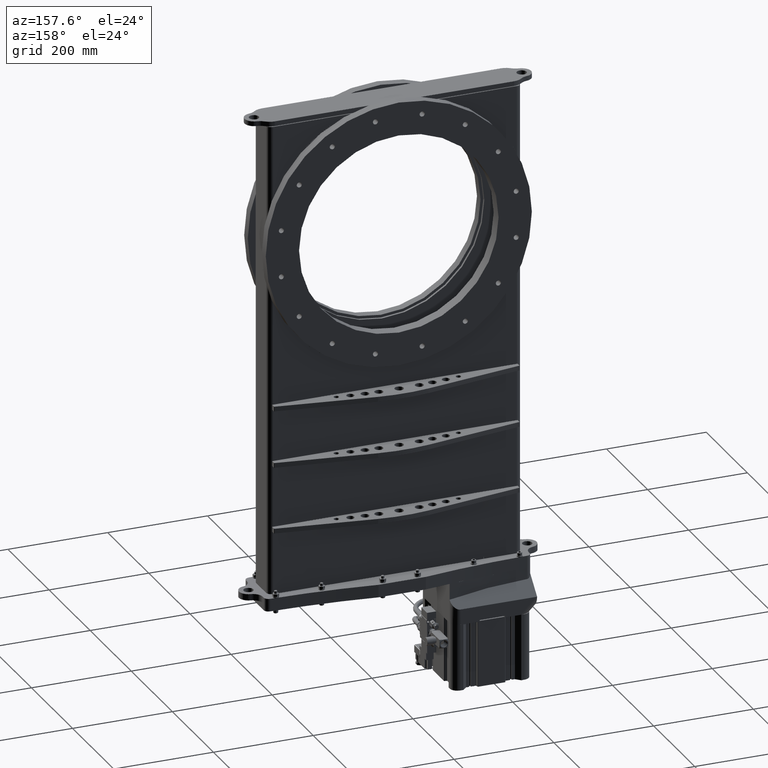
[diagram: clean part render]
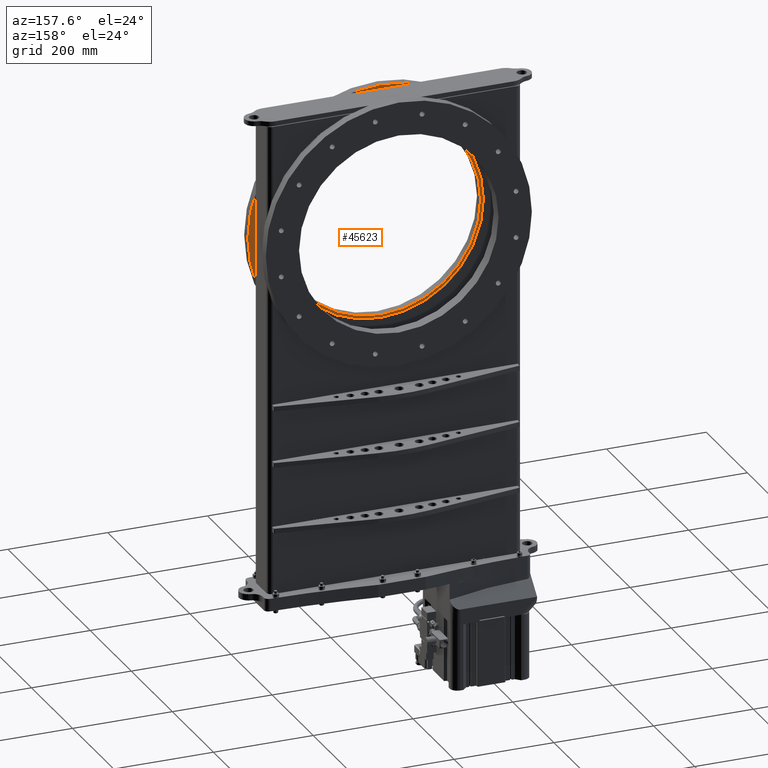
[diagram: same view with one face highlighted and labeled with its STEP entity id]
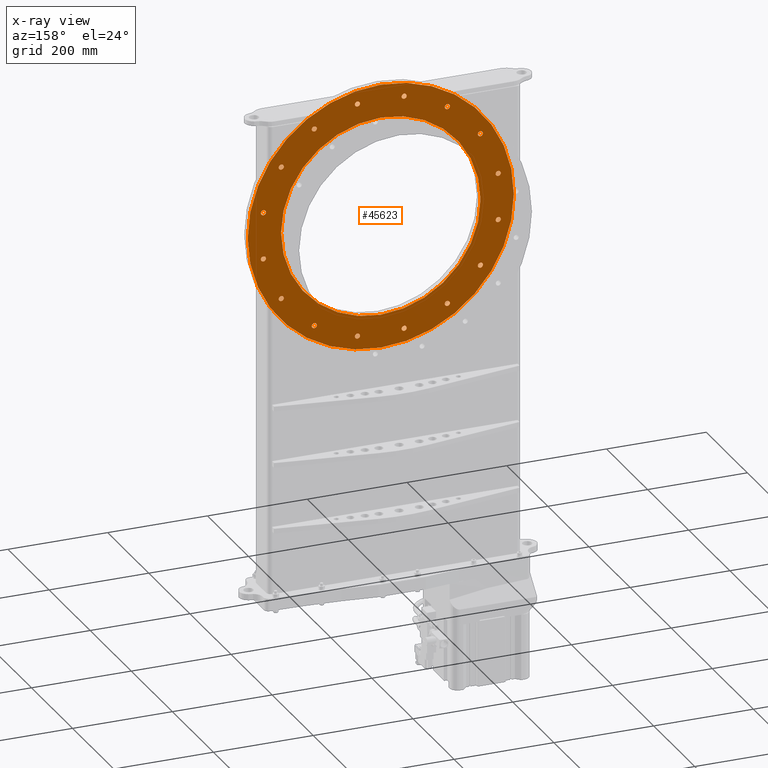
[diagram: x-ray of the same camera — body ghosted, the highlighted face saturated]
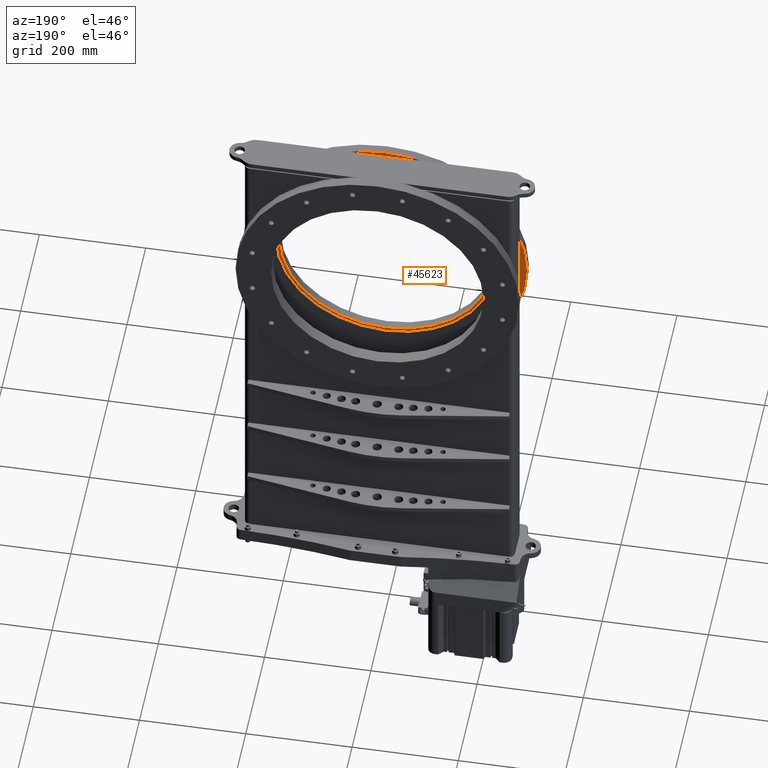
[diagram: same view with one face highlighted and labeled with its STEP entity id]
A machine part, auxiliary view. The second image highlights one B-rep face of the part: STEP entity #45623.
The next image is the same camera in x-ray: the body ghosted, the highlighted face saturated — about 0% of this face is hidden behind the body in this view.
A second angle (auxiliary view) of the same face is appended — the face is thin or edge-on in the first view.
In plain terms, the highlighted planar face has unit normal (-0, 1, -0).
Its self-contained STEP definition (entity closure, byte-faithful):
#70 = VERTEX_POINT ( 'NONE', #17913 ) ;
#537 = CIRCLE ( 'NONE', #41594, 0.2007874015748029000 ) ;
#557 = DIRECTION ( 'NONE',  ( 0.0000000000000000000, 0.0000000000000000000, 1.000000000000000000 ) ) ;
#1061 = DIRECTION ( 'NONE',  ( 0.0000000000000000000, 0.0000000000000000000, 1.000000000000000000 ) ) ;
#1140 = AXIS2_PLACEMENT_3D ( 'NONE', #14977, #34282, #24769 ) ;
#1148 = FACE_BOUND ( 'NONE', #57524, .T. ) ;
#1870 = EDGE_CURVE ( 'NONE', #40888, #9859, #43566, .T. ) ;
#2165 = CARTESIAN_POINT ( 'NONE',  ( -7.856556366646782600, -77.03351309069576300, 27.35303221751707900 ) ) ;
#2593 = DIRECTION ( 'NONE',  ( 0.0000000000000000000, 0.0000000000000000000, 1.000000000000000000 ) ) ;
#2667 = CARTESIAN_POINT ( 'NONE',  ( -1.843408452730433300, -77.03351309069576300, 23.13438783321433300 ) ) ;
#2855 = EDGE_CURVE ( 'NONE', #12843, #39254, #63098, .T. ) ;
#3041 = EDGE_LOOP ( 'NONE', ( #40603, #62311 ) ) ;
#3288 = CARTESIAN_POINT ( 'NONE',  ( -5.249583131802261000, -77.03351309069576300, 24.54527158109773000 ) ) ;
#3379 = FACE_BOUND ( 'NONE', #30081, .T. ) ;
#3588 = CARTESIAN_POINT ( 'NONE',  ( -5.249583131802148200, -77.03351309069576300, 40.25838431439126500 ) ) ;
#3624 = EDGE_CURVE ( 'NONE', #51291, #14193, #5934, .T. ) ;
#3632 = AXIS2_PLACEMENT_3D ( 'NONE', #26964, #16965, #26753 ) ;
#3932 = ORIENTED_EDGE ( 'NONE', *, *, #14844, .F. ) ;
#3942 = EDGE_LOOP ( 'NONE', ( #24578, #9798 ) ) ;
#4188 = AXIS2_PLACEMENT_3D ( 'NONE', #28173, #62202, #18812 ) ;
#4275 = EDGE_CURVE ( 'NONE', #14649, #52074, #45357, .T. ) ;
#4478 = VERTEX_POINT ( 'NONE', #42312 ) ;
#4538 = ORIENTED_EDGE ( 'NONE', *, *, #4275, .F. ) ;
#4639 = CIRCLE ( 'NONE', #10075, 0.2007874015748029000 ) ;
#4733 = AXIS2_PLACEMENT_3D ( 'NONE', #57637, #42746, #32503 ) ;
#5210 = CIRCLE ( 'NONE', #21980, 0.2007874015748072600 ) ;
#5239 = DIRECTION ( 'NONE',  ( -2.350988701644575000E-038, 1.000000000000000000, 4.114230227878006300E-038 ) ) ;
#5262 = VERTEX_POINT ( 'NONE', #13774 ) ;
#5404 = CIRCLE ( 'NONE', #56029, 0.2007874015748029000 ) ;
#5478 = CARTESIAN_POINT ( 'NONE',  ( -1.843408452730303600, -77.03351309069576300, 41.66926806227459700 ) ) ;
#5483 = ORIENTED_EDGE ( 'NONE', *, *, #17079, .F. ) ;
#5934 = CIRCLE ( 'NONE', #19645, 0.2007874015748029000 ) ;
#6154 = EDGE_CURVE ( 'NONE', #33998, #40052, #35689, .T. ) ;
#6398 = FACE_BOUND ( 'NONE', #34943, .T. ) ;
#6467 = CARTESIAN_POINT ( 'NONE',  ( -9.267440114530112200, -77.03351309069576300, 34.04444899890012300 ) ) ;
#6722 = CIRCLE ( 'NONE', #42909, 0.2007874015748029000 ) ;
#6799 = DIRECTION ( 'NONE',  ( -2.350988701644575000E-038, 1.000000000000000000, 4.114230227878006300E-038 ) ) ;
#6953 = CARTESIAN_POINT ( 'NONE',  ( 5.249583131802317800, -77.03351309069576300, 40.25838431439114400 ) ) ;
#7053 = DIRECTION ( 'NONE',  ( -2.350988701644575500E-038, 1.000000000000000000, -5.289724578700292700E-038 ) ) ;
#7100 = DIRECTION ( 'NONE',  ( 0.0000000000000000000, 0.0000000000000000000, 1.000000000000000000 ) ) ;
#7187 = CARTESIAN_POINT ( 'NONE',  ( -7.856556366646708900, -77.03351309069576300, 37.65141107954674700 ) ) ;
#7276 = PLANE ( 'NONE',  #11160 ) ;
#7362 = EDGE_CURVE ( 'NONE', #36567, #50354, #46887, .T. ) ;
#7757 = CARTESIAN_POINT ( 'NONE',  ( 7.856556366646744400, -77.03351309069576300, 27.15224481594222200 ) ) ;
#7996 = CIRCLE ( 'NONE', #62005, 10.50000000000000700 ) ;
#8046 = CARTESIAN_POINT ( 'NONE',  ( 9.267440114530128200, -77.03351309069576300, 30.55841949501405000 ) ) ;
#8557 = AXIS2_PLACEMENT_3D ( 'NONE', #5478, #57741, #59128 ) ;
#8683 = FACE_OUTER_BOUND ( 'NONE', #12838, .T. ) ;
#8691 = DIRECTION ( 'NONE',  ( 5.551115123125779600E-017, 0.0000000000000000000, 1.000000000000000000 ) ) ;
#8825 = ORIENTED_EDGE ( 'NONE', *, *, #18785, .F. ) ;
#9111 = DIRECTION ( 'NONE',  ( -2.350988701644575000E-038, 1.000000000000000000, 4.114230227878006300E-038 ) ) ;
#9305 = EDGE_CURVE ( 'NONE', #52074, #14649, #59551, .T. ) ;
#9343 = CARTESIAN_POINT ( 'NONE',  ( 9.267440114530126400, -77.03351309069576300, 34.24523640047485200 ) ) ;
#9518 = DIRECTION ( 'NONE',  ( -2.350988701644575000E-038, 1.000000000000000000, 4.114230227878006300E-038 ) ) ;
#9598 = DIRECTION ( 'NONE',  ( 0.0000000000000000000, 0.0000000000000000000, 1.000000000000000000 ) ) ;
#9766 = EDGE_CURVE ( 'NONE', #9859, #40888, #36645, .T. ) ;
#9798 = ORIENTED_EDGE ( 'NONE', *, *, #15690, .F. ) ;
#9859 = VERTEX_POINT ( 'NONE', #51358 ) ;
#9911 = DIRECTION ( 'NONE',  ( -2.350988701644575000E-038, 1.000000000000000000, 4.114230227878006300E-038 ) ) ;
#10063 = AXIS2_PLACEMENT_3D ( 'NONE', #35676, #35473, #30774 ) ;
#10075 = AXIS2_PLACEMENT_3D ( 'NONE', #35375, #49635, #26246 ) ;
#10076 = CIRCLE ( 'NONE', #29523, 10.50000000000000700 ) ;
#10467 = CARTESIAN_POINT ( 'NONE',  ( -9.267440114530124600, -77.03351309069576300, 30.35763209343925300 ) ) ;
#10528 = CARTESIAN_POINT ( 'NONE',  ( -1.843408452730433300, -77.03351309069576300, 22.93360043163953000 ) ) ;
#10668 = CIRCLE ( 'NONE', #60320, 7.874000000000006800 ) ;
#11019 = CIRCLE ( 'NONE', #20931, 0.2007874015748029000 ) ;
#11160 = AXIS2_PLACEMENT_3D ( 'NONE', #46798, #7053, #56591 ) ;
#11257 = AXIS2_PLACEMENT_3D ( 'NONE', #31581, #60342, #40764 ) ;
#11442 = CIRCLE ( 'NONE', #1140, 0.2007874015748029000 ) ;
#11538 = AXIS2_PLACEMENT_3D ( 'NONE', #14562, #33651, #48744 ) ;
#11718 = AXIS2_PLACEMENT_3D ( 'NONE', #58468, #52948, #9598 ) ;
#11814 = EDGE_LOOP ( 'NONE', ( #45175, #53440 ) ) ;
#11823 = CARTESIAN_POINT ( 'NONE',  ( -7.856556366646782600, -77.03351309069576300, 26.95145741436747500 ) ) ;
#11891 = ORIENTED_EDGE ( 'NONE', *, *, #47875, .F. ) ;
#12409 = CARTESIAN_POINT ( 'NONE',  ( -5.249583131802148200, -77.03351309069576300, 40.45917171596607200 ) ) ;
#12542 = FACE_BOUND ( 'NONE', #11814, .T. ) ;
#12546 = DIRECTION ( 'NONE',  ( -2.350988701644575000E-038, 1.000000000000000000, 4.114230227878006300E-038 ) ) ;
#12744 = CARTESIAN_POINT ( 'NONE',  ( 1.843408452730366700, -77.03351309069576300, 22.93360043163951500 ) ) ;
#12756 = DIRECTION ( 'NONE',  ( -2.350988701644575000E-038, 1.000000000000000000, 4.114230227878006300E-038 ) ) ;
#12785 = EDGE_LOOP ( 'NONE', ( #59554, #21780 ) ) ;
#12838 = EDGE_LOOP ( 'NONE', ( #28952, #43711 ) ) ;
#12843 = VERTEX_POINT ( 'NONE', #55518 ) ;
#13222 = VERTEX_POINT ( 'NONE', #19595 ) ;
#13350 = EDGE_CURVE ( 'NONE', #17259, #23597, #49678, .T. ) ;
#13586 = CARTESIAN_POINT ( 'NONE',  ( 7.856556366646744400, -77.03351309069576300, 27.15224481594222200 ) ) ;
#13743 = CARTESIAN_POINT ( 'NONE',  ( 7.856556366646823400, -77.03351309069576300, 37.85219848112137700 ) ) ;
#13774 = CARTESIAN_POINT ( 'NONE',  ( -7.856556366646708900, -77.03351309069576300, 37.45062367797194000 ) ) ;
#14039 = CARTESIAN_POINT ( 'NONE',  ( -1.271161857815728600E-015, -77.03351309069576300, 32.40182794774445100 ) ) ;
#14193 = VERTEX_POINT ( 'NONE', #28540 ) ;
#14342 = ORIENTED_EDGE ( 'NONE', *, *, #13350, .F. ) ;
#14424 = ORIENTED_EDGE ( 'NONE', *, *, #58048, .F. ) ;
#14562 = CARTESIAN_POINT ( 'NONE',  ( -5.249583131802148200, -77.03351309069576300, 40.25838431439126500 ) ) ;
#14649 = VERTEX_POINT ( 'NONE', #12744 ) ;
#14694 = AXIS2_PLACEMENT_3D ( 'NONE', #58411, #5239, #39045 ) ;
#14844 = EDGE_CURVE ( 'NONE', #39254, #12843, #29616, .T. ) ;
#14977 = CARTESIAN_POINT ( 'NONE',  ( -9.267440114530112200, -77.03351309069576300, 34.24523640047492300 ) ) ;
#15526 = CIRCLE ( 'NONE', #46133, 0.2007874015748029000 ) ;
#15690 = EDGE_CURVE ( 'NONE', #50354, #36567, #27853, .T. ) ;
#15959 = VERTEX_POINT ( 'NONE', #24355 ) ;
#16147 = DIRECTION ( 'NONE',  ( 0.0000000000000000000, 0.0000000000000000000, 1.000000000000000000 ) ) ;
#16523 = EDGE_CURVE ( 'NONE', #61599, #52459, #7996, .T. ) ;
#16548 = EDGE_LOOP ( 'NONE', ( #3932, #41237 ) ) ;
#16965 = DIRECTION ( 'NONE',  ( -2.350988701644575000E-038, 1.000000000000000000, 4.114230227878006300E-038 ) ) ;
#17079 = EDGE_CURVE ( 'NONE', #26590, #4478, #50484, .T. ) ;
#17259 = VERTEX_POINT ( 'NONE', #40025 ) ;
#17540 = CARTESIAN_POINT ( 'NONE',  ( 7.856556366646823400, -77.03351309069576300, 37.65141107954657700 ) ) ;
#17577 = CARTESIAN_POINT ( 'NONE',  ( -1.271161857815728600E-015, -77.03351309069576300, 32.40182794774445100 ) ) ;
#17712 = CIRCLE ( 'NONE', #42995, 0.2007874015748029000 ) ;
#17801 = EDGE_CURVE ( 'NONE', #41370, #24009, #15526, .T. ) ;
#17913 = CARTESIAN_POINT ( 'NONE',  ( 7.856556366646823400, -77.03351309069576300, 37.45062367797177000 ) ) ;
#18274 = CARTESIAN_POINT ( 'NONE',  ( 9.267440114530128200, -77.03351309069576300, 30.35763209343924600 ) ) ;
#18785 = EDGE_CURVE ( 'NONE', #15959, #57168, #45040, .T. ) ;
#18812 = DIRECTION ( 'NONE',  ( 0.0000000000000000000, 0.0000000000000000000, 1.000000000000000000 ) ) ;
#19235 = EDGE_CURVE ( 'NONE', #52459, #61599, #10076, .T. ) ;
#19595 = CARTESIAN_POINT ( 'NONE',  ( 5.249583131802203300, -77.03351309069576300, 24.34448417952288700 ) ) ;
#19645 = AXIS2_PLACEMENT_3D ( 'NONE', #40905, #55565, #7100 ) ;
#19742 = AXIS2_PLACEMENT_3D ( 'NONE', #52649, #43288, #44513 ) ;
#19787 = CARTESIAN_POINT ( 'NONE',  ( 7.856556366646744400, -77.03351309069576300, 26.95145741436741800 ) ) ;
#19877 = DIRECTION ( 'NONE',  ( 5.551115123125779600E-017, 0.0000000000000000000, 1.000000000000000000 ) ) ;
#19991 = EDGE_CURVE ( 'NONE', #28937, #24106, #56328, .T. ) ;
#19996 = VERTEX_POINT ( 'NONE', #2165 ) ;
#20487 = CARTESIAN_POINT ( 'NONE',  ( 5.249583131802317800, -77.03351309069576300, 40.05759691281633600 ) ) ;
#20931 = AXIS2_PLACEMENT_3D ( 'NONE', #39506, #59090, #1061 ) ;
#21525 = DIRECTION ( 'NONE',  ( 0.0000000000000000000, 0.0000000000000000000, 1.000000000000000000 ) ) ;
#21743 = CARTESIAN_POINT ( 'NONE',  ( -1.843408452730433300, -77.03351309069576300, 23.13438783321433300 ) ) ;
#21780 = ORIENTED_EDGE ( 'NONE', *, *, #62503, .F. ) ;
#21980 = AXIS2_PLACEMENT_3D ( 'NONE', #6953, #40545, #55204 ) ;
#22106 = DIRECTION ( 'NONE',  ( 0.0000000000000000000, 0.0000000000000000000, 1.000000000000000000 ) ) ;
#22220 = CARTESIAN_POINT ( 'NONE',  ( 9.267440114530126400, -77.03351309069576300, 34.04444899890005200 ) ) ;
#22247 = DIRECTION ( 'NONE',  ( 0.0000000000000000000, 0.0000000000000000000, 1.000000000000000000 ) ) ;
#22713 = DIRECTION ( 'NONE',  ( -2.350988701644575000E-038, 1.000000000000000000, 4.114230227878006300E-038 ) ) ;
#23158 = ORIENTED_EDGE ( 'NONE', *, *, #3624, .F. ) ;
#23234 = FACE_BOUND ( 'NONE', #59831, .T. ) ;
#23597 = VERTEX_POINT ( 'NONE', #6467 ) ;
#23721 = ORIENTED_EDGE ( 'NONE', *, *, #54088, .F. ) ;
#24009 = VERTEX_POINT ( 'NONE', #10528 ) ;
#24106 = VERTEX_POINT ( 'NONE', #45275 ) ;
#24355 = CARTESIAN_POINT ( 'NONE',  ( 5.249583131802317800, -77.03351309069576300, 40.45917171596595100 ) ) ;
#24578 = ORIENTED_EDGE ( 'NONE', *, *, #7362, .F. ) ;
#24581 = EDGE_LOOP ( 'NONE', ( #34900, #52936 ) ) ;
#24701 = VERTEX_POINT ( 'NONE', #10467 ) ;
#24748 = FACE_BOUND ( 'NONE', #59331, .T. ) ;
#24769 = DIRECTION ( 'NONE',  ( 0.0000000000000000000, 0.0000000000000000000, 1.000000000000000000 ) ) ;
#25332 = AXIS2_PLACEMENT_3D ( 'NONE', #46109, #31645, #2593 ) ;
#25365 = EDGE_CURVE ( 'NONE', #56421, #13222, #29208, .T. ) ;
#25390 = VERTEX_POINT ( 'NONE', #49528 ) ;
#25463 = FACE_BOUND ( 'NONE', #16548, .T. ) ;
#26178 = FACE_BOUND ( 'NONE', #24581, .T. ) ;
#26246 = DIRECTION ( 'NONE',  ( 0.0000000000000000000, 0.0000000000000000000, 1.000000000000000000 ) ) ;
#26590 = VERTEX_POINT ( 'NONE', #12409 ) ;
#26593 = AXIS2_PLACEMENT_3D ( 'NONE', #43320, #47800, #8691 ) ;
#26753 = DIRECTION ( 'NONE',  ( 0.0000000000000000000, 0.0000000000000000000, 1.000000000000000000 ) ) ;
#26964 = CARTESIAN_POINT ( 'NONE',  ( 7.856556366646823400, -77.03351309069576300, 37.65141107954657700 ) ) ;
#27127 = DIRECTION ( 'NONE',  ( -2.350988701644575000E-038, 1.000000000000000000, 4.114230227878006300E-038 ) ) ;
#27302 = CIRCLE ( 'NONE', #11718, 0.2007874015748029000 ) ;
#27475 = CARTESIAN_POINT ( 'NONE',  ( -7.856556366646708900, -77.03351309069576300, 37.85219848112154800 ) ) ;
#27793 = DIRECTION ( 'NONE',  ( 5.551115123125779000E-017, 0.0000000000000000000, 1.000000000000000000 ) ) ;
#27853 = CIRCLE ( 'NONE', #28578, 0.2007874015748029000 ) ;
#28173 = CARTESIAN_POINT ( 'NONE',  ( 1.843408452730493900, -77.03351309069576300, 41.66926806227456100 ) ) ;
#28540 = CARTESIAN_POINT ( 'NONE',  ( 9.267440114530126400, -77.03351309069576300, 34.44602380204965900 ) ) ;
#28578 = AXIS2_PLACEMENT_3D ( 'NONE', #7757, #46430, #22247 ) ;
#28817 = CARTESIAN_POINT ( 'NONE',  ( -1.271161857815728600E-015, -77.03351309069576300, 32.40182794774445100 ) ) ;
#28913 = CIRCLE ( 'NONE', #34883, 0.2007874015748072600 ) ;
#28937 = VERTEX_POINT ( 'NONE', #18274 ) ;
#28952 = ORIENTED_EDGE ( 'NONE', *, *, #19235, .T. ) ;
#29041 = DIRECTION ( 'NONE',  ( -2.350988701644575000E-038, 1.000000000000000000, 4.114230227878006300E-038 ) ) ;
#29208 = CIRCLE ( 'NONE', #10063, 0.2007874015748029000 ) ;
#29446 = DIRECTION ( 'NONE',  ( -2.350988701644575000E-038, 1.000000000000000000, 4.114230227878006300E-038 ) ) ;
#29523 = AXIS2_PLACEMENT_3D ( 'NONE', #17577, #47542, #27793 ) ;
#29616 = CIRCLE ( 'NONE', #14694, 0.2007874015748029000 ) ;
#29822 = CARTESIAN_POINT ( 'NONE',  ( -8.340670530208042900E-016, -77.03351309069576300, 40.27582794774446000 ) ) ;
#29931 = ORIENTED_EDGE ( 'NONE', *, *, #55151, .F. ) ;
#29942 = CIRCLE ( 'NONE', #57843, 0.2007874015748029000 ) ;
#30081 = EDGE_LOOP ( 'NONE', ( #11891, #34359 ) ) ;
#30430 = CIRCLE ( 'NONE', #3632, 0.2007874015748029000 ) ;
#30774 = DIRECTION ( 'NONE',  ( 0.0000000000000000000, 0.0000000000000000000, 1.000000000000000000 ) ) ;
#30962 = ORIENTED_EDGE ( 'NONE', *, *, #50590, .F. ) ;
#31217 = DIRECTION ( 'NONE',  ( 0.0000000000000000000, 0.0000000000000000000, 1.000000000000000000 ) ) ;
#31581 = CARTESIAN_POINT ( 'NONE',  ( -1.843408452730303600, -77.03351309069576300, 41.66926806227459700 ) ) ;
#31645 = DIRECTION ( 'NONE',  ( -2.350988701644575000E-038, 1.000000000000000000, 4.114230227878006300E-038 ) ) ;
#31673 = AXIS2_PLACEMENT_3D ( 'NONE', #55023, #35068, #16147 ) ;
#31749 = VERTEX_POINT ( 'NONE', #13743 ) ;
#32178 = DIRECTION ( 'NONE',  ( -2.350988701644575000E-038, 1.000000000000000000, 4.114230227878006300E-038 ) ) ;
#32226 = DIRECTION ( 'NONE',  ( -2.350988701644575000E-038, 1.000000000000000000, 4.114230227878006300E-038 ) ) ;
#32423 = EDGE_LOOP ( 'NONE', ( #58961, #49708 ) ) ;
#32503 = DIRECTION ( 'NONE',  ( 0.0000000000000000000, 0.0000000000000000000, 1.000000000000000000 ) ) ;
#33003 = FACE_BOUND ( 'NONE', #32423, .T. ) ;
#33651 = DIRECTION ( 'NONE',  ( -2.350988701644575000E-038, 1.000000000000000000, 4.114230227878006300E-038 ) ) ;
#33998 = VERTEX_POINT ( 'NONE', #62025 ) ;
#34282 = DIRECTION ( 'NONE',  ( -2.350988701644575000E-038, 1.000000000000000000, 4.114230227878006300E-038 ) ) ;
#34359 = ORIENTED_EDGE ( 'NONE', *, *, #19991, .F. ) ;
#34883 = AXIS2_PLACEMENT_3D ( 'NONE', #3588, #32226, #37156 ) ;
#34900 = ORIENTED_EDGE ( 'NONE', *, *, #37348, .F. ) ;
#34943 = EDGE_LOOP ( 'NONE', ( #46246, #4538 ) ) ;
#35068 = DIRECTION ( 'NONE',  ( -2.350988701644575000E-038, 1.000000000000000000, 4.114230227878006300E-038 ) ) ;
#35154 = EDGE_CURVE ( 'NONE', #31749, #70, #5404, .T. ) ;
#35375 = CARTESIAN_POINT ( 'NONE',  ( -7.856556366646782600, -77.03351309069576300, 27.15224481594227900 ) ) ;
#35473 = DIRECTION ( 'NONE',  ( -2.350988701644575000E-038, 1.000000000000000000, 4.114230227878006300E-038 ) ) ;
#35676 = CARTESIAN_POINT ( 'NONE',  ( 5.249583131802203300, -77.03351309069576300, 24.54527158109769000 ) ) ;
#35689 = CIRCLE ( 'NONE', #38467, 0.2007874015747985200 ) ;
#36053 = FACE_BOUND ( 'NONE', #47086, .T. ) ;
#36076 = ORIENTED_EDGE ( 'NONE', *, *, #51611, .F. ) ;
#36156 = EDGE_CURVE ( 'NONE', #4478, #26590, #28913, .T. ) ;
#36262 = ORIENTED_EDGE ( 'NONE', *, *, #36352, .F. ) ;
#36352 = EDGE_CURVE ( 'NONE', #49414, #19996, #4639, .T. ) ;
#36382 = EDGE_LOOP ( 'NONE', ( #47026, #39309 ) ) ;
#36518 = DIRECTION ( 'NONE',  ( 0.0000000000000000000, 0.0000000000000000000, 1.000000000000000000 ) ) ;
#36567 = VERTEX_POINT ( 'NONE', #46387 ) ;
#36645 = CIRCLE ( 'NONE', #11257, 0.2007874015747985200 ) ;
#37103 = DIRECTION ( 'NONE',  ( 0.0000000000000000000, 0.0000000000000000000, 1.000000000000000000 ) ) ;
#37156 = DIRECTION ( 'NONE',  ( 0.0000000000000000000, 0.0000000000000000000, 1.000000000000000000 ) ) ;
#37239 = VERTEX_POINT ( 'NONE', #57638 ) ;
#37281 = DIRECTION ( 'NONE',  ( 0.0000000000000000000, 0.0000000000000000000, 1.000000000000000000 ) ) ;
#37348 = EDGE_CURVE ( 'NONE', #25390, #24701, #27302, .T. ) ;
#38036 = DIRECTION ( 'NONE',  ( -2.350988701644575000E-038, 1.000000000000000000, 4.114230227878006300E-038 ) ) ;
#38458 = DIRECTION ( 'NONE',  ( 5.551115123125779000E-017, 0.0000000000000000000, 1.000000000000000000 ) ) ;
#38467 = AXIS2_PLACEMENT_3D ( 'NONE', #39434, #29041, #557 ) ;
#38849 = CARTESIAN_POINT ( 'NONE',  ( -1.843408452730433300, -77.03351309069576300, 23.33517523478913700 ) ) ;
#39045 = DIRECTION ( 'NONE',  ( 0.0000000000000000000, 0.0000000000000000000, 1.000000000000000000 ) ) ;
#39254 = VERTEX_POINT ( 'NONE', #62812 ) ;
#39309 = ORIENTED_EDGE ( 'NONE', *, *, #1870, .F. ) ;
#39434 = CARTESIAN_POINT ( 'NONE',  ( 1.843408452730493900, -77.03351309069576300, 41.66926806227456100 ) ) ;
#39506 = CARTESIAN_POINT ( 'NONE',  ( -9.267440114530124600, -77.03351309069576300, 30.55841949501405400 ) ) ;
#39744 = AXIS2_PLACEMENT_3D ( 'NONE', #59781, #6799, #31217 ) ;
#40025 = CARTESIAN_POINT ( 'NONE',  ( -9.267440114530112200, -77.03351309069576300, 34.44602380204972300 ) ) ;
#40052 = VERTEX_POINT ( 'NONE', #52166 ) ;
#40333 = VERTEX_POINT ( 'NONE', #29822 ) ;
#40388 = ORIENTED_EDGE ( 'NONE', *, *, #35154, .F. ) ;
#40545 = DIRECTION ( 'NONE',  ( -2.350988701644575000E-038, 1.000000000000000000, 4.114230227878006300E-038 ) ) ;
#40603 = ORIENTED_EDGE ( 'NONE', *, *, #53182, .F. ) ;
#40764 = DIRECTION ( 'NONE',  ( 0.0000000000000000000, 0.0000000000000000000, 1.000000000000000000 ) ) ;
#40888 = VERTEX_POINT ( 'NONE', #54612 ) ;
#40905 = CARTESIAN_POINT ( 'NONE',  ( 9.267440114530126400, -77.03351309069576300, 34.24523640047485200 ) ) ;
#41237 = ORIENTED_EDGE ( 'NONE', *, *, #2855, .F. ) ;
#41370 = VERTEX_POINT ( 'NONE', #38849 ) ;
#41585 = AXIS2_PLACEMENT_3D ( 'NONE', #41995, #32178, #37103 ) ;
#41594 = AXIS2_PLACEMENT_3D ( 'NONE', #7187, #12756, #36518 ) ;
#41994 = AXIS2_PLACEMENT_3D ( 'NONE', #21743, #50384, #21525 ) ;
#41995 = CARTESIAN_POINT ( 'NONE',  ( -7.856556366646708900, -77.03351309069576300, 37.65141107954674700 ) ) ;
#42050 = EDGE_CURVE ( 'NONE', #5262, #56359, #63035, .T. ) ;
#42312 = CARTESIAN_POINT ( 'NONE',  ( -5.249583131802148200, -77.03351309069576300, 40.05759691281645700 ) ) ;
#42332 = EDGE_LOOP ( 'NONE', ( #62655, #23721 ) ) ;
#42393 = EDGE_CURVE ( 'NONE', #37239, #40333, #10668, .T. ) ;
#42615 = DIRECTION ( 'NONE',  ( -2.350988701644575000E-038, 1.000000000000000000, 4.114230227878006300E-038 ) ) ;
#42746 = DIRECTION ( 'NONE',  ( -2.350988701644575000E-038, 1.000000000000000000, 4.114230227878006300E-038 ) ) ;
#42824 = DIRECTION ( 'NONE',  ( 0.0000000000000000000, 0.0000000000000000000, 1.000000000000000000 ) ) ;
#42909 = AXIS2_PLACEMENT_3D ( 'NONE', #9343, #38036, #57382 ) ;
#42995 = AXIS2_PLACEMENT_3D ( 'NONE', #8046, #12546, #22106 ) ;
#43288 = DIRECTION ( 'NONE',  ( -2.350988701644575000E-038, 1.000000000000000000, 4.114230227878006300E-038 ) ) ;
#43320 = CARTESIAN_POINT ( 'NONE',  ( -1.271161857815728600E-015, -77.03351309069576300, 32.40182794774445100 ) ) ;
#43366 = AXIS2_PLACEMENT_3D ( 'NONE', #13586, #9518, #47767 ) ;
#43566 = CIRCLE ( 'NONE', #8557, 0.2007874015747985200 ) ;
#43711 = ORIENTED_EDGE ( 'NONE', *, *, #16523, .T. ) ;
#43748 = FACE_BOUND ( 'NONE', #36382, .T. ) ;
#44286 = DIRECTION ( 'NONE',  ( 0.0000000000000000000, 0.0000000000000000000, 1.000000000000000000 ) ) ;
#44513 = DIRECTION ( 'NONE',  ( 0.0000000000000000000, 0.0000000000000000000, 1.000000000000000000 ) ) ;
#44530 = CIRCLE ( 'NONE', #4188, 0.2007874015747985200 ) ;
#45040 = CIRCLE ( 'NONE', #19742, 0.2007874015748072600 ) ;
#45175 = ORIENTED_EDGE ( 'NONE', *, *, #17801, .F. ) ;
#45275 = CARTESIAN_POINT ( 'NONE',  ( 9.267440114530128200, -77.03351309069576300, 30.75920689658885400 ) ) ;
#45346 = CARTESIAN_POINT ( 'NONE',  ( 1.843408452730366700, -77.03351309069576300, 23.33517523478912300 ) ) ;
#45357 = CIRCLE ( 'NONE', #25332, 0.2007874015748029000 ) ;
#45623 = ADVANCED_FACE ( 'NONE', ( #23234, #1148, #56683, #43748, #24748, #55126, #48992, #26178, #36053, #25463, #12542, #6398, #60410, #61211, #3379, #57372, #33003, #8683 ), #7276, .T. ) ;
#45749 = EDGE_CURVE ( 'NONE', #24701, #25390, #11019, .T. ) ;
#45999 = DIRECTION ( 'NONE',  ( 0.0000000000000000000, 0.0000000000000000000, 1.000000000000000000 ) ) ;
#46109 = CARTESIAN_POINT ( 'NONE',  ( 1.843408452730366700, -77.03351309069576300, 23.13438783321431900 ) ) ;
#46133 = AXIS2_PLACEMENT_3D ( 'NONE', #2667, #46828, #37281 ) ;
#46246 = ORIENTED_EDGE ( 'NONE', *, *, #9305, .F. ) ;
#46387 = CARTESIAN_POINT ( 'NONE',  ( 7.856556366646744400, -77.03351309069576300, 27.35303221751702200 ) ) ;
#46430 = DIRECTION ( 'NONE',  ( -2.350988701644575000E-038, 1.000000000000000000, 4.114230227878006300E-038 ) ) ;
#46798 = CARTESIAN_POINT ( 'NONE',  ( -10.50000000000000200, -77.03351309069576300, 42.90182794774445800 ) ) ;
#46828 = DIRECTION ( 'NONE',  ( -2.350988701644575000E-038, 1.000000000000000000, 4.114230227878006300E-038 ) ) ;
#46887 = CIRCLE ( 'NONE', #43366, 0.2007874015748029000 ) ;
#47026 = ORIENTED_EDGE ( 'NONE', *, *, #9766, .F. ) ;
#47086 = EDGE_LOOP ( 'NONE', ( #29931, #36262 ) ) ;
#47118 = CARTESIAN_POINT ( 'NONE',  ( -7.856556366646782600, -77.03351309069576300, 27.15224481594227900 ) ) ;
#47542 = DIRECTION ( 'NONE',  ( -2.350988701644575000E-038, 1.000000000000000000, 4.114230227878006300E-038 ) ) ;
#47767 = DIRECTION ( 'NONE',  ( 0.0000000000000000000, 0.0000000000000000000, 1.000000000000000000 ) ) ;
#47800 = DIRECTION ( 'NONE',  ( -2.350988701644575000E-038, 1.000000000000000000, 4.114230227878006300E-038 ) ) ;
#47875 = EDGE_CURVE ( 'NONE', #24106, #28937, #17712, .T. ) ;
#48492 = AXIS2_PLACEMENT_3D ( 'NONE', #3288, #42615, #42824 ) ;
#48703 = EDGE_CURVE ( 'NONE', #23597, #17259, #11442, .T. ) ;
#48744 = DIRECTION ( 'NONE',  ( 0.0000000000000000000, 0.0000000000000000000, 1.000000000000000000 ) ) ;
#48922 = CIRCLE ( 'NONE', #55066, 0.2007874015748029000 ) ;
#48992 = FACE_BOUND ( 'NONE', #61402, .T. ) ;
#49414 = VERTEX_POINT ( 'NONE', #11823 ) ;
#49528 = CARTESIAN_POINT ( 'NONE',  ( -9.267440114530124600, -77.03351309069576300, 30.75920689658885700 ) ) ;
#49635 = DIRECTION ( 'NONE',  ( -2.350988701644575000E-038, 1.000000000000000000, 4.114230227878006300E-038 ) ) ;
#49678 = CIRCLE ( 'NONE', #31673, 0.2007874015748029000 ) ;
#49708 = ORIENTED_EDGE ( 'NONE', *, *, #42393, .F. ) ;
#50354 = VERTEX_POINT ( 'NONE', #19787 ) ;
#50384 = DIRECTION ( 'NONE',  ( -2.350988701644575000E-038, 1.000000000000000000, 4.114230227878006300E-038 ) ) ;
#50484 = CIRCLE ( 'NONE', #11538, 0.2007874015748072600 ) ;
#50590 = EDGE_CURVE ( 'NONE', #70, #31749, #30430, .T. ) ;
#51291 = VERTEX_POINT ( 'NONE', #22220 ) ;
#51358 = CARTESIAN_POINT ( 'NONE',  ( -1.843408452730303600, -77.03351309069576300, 41.87005546384939700 ) ) ;
#51611 = EDGE_CURVE ( 'NONE', #57168, #15959, #5210, .T. ) ;
#52074 = VERTEX_POINT ( 'NONE', #45346 ) ;
#52166 = CARTESIAN_POINT ( 'NONE',  ( 1.843408452730493900, -77.03351309069576300, 41.46848066069976100 ) ) ;
#52459 = VERTEX_POINT ( 'NONE', #60216 ) ;
#52649 = CARTESIAN_POINT ( 'NONE',  ( 5.249583131802317800, -77.03351309069576300, 40.25838431439114400 ) ) ;
#52936 = ORIENTED_EDGE ( 'NONE', *, *, #45749, .F. ) ;
#52948 = DIRECTION ( 'NONE',  ( -2.350988701644575000E-038, 1.000000000000000000, 4.114230227878006300E-038 ) ) ;
#53182 = EDGE_CURVE ( 'NONE', #56359, #5262, #537, .T. ) ;
#53440 = ORIENTED_EDGE ( 'NONE', *, *, #63103, .F. ) ;
#53668 = CARTESIAN_POINT ( 'NONE',  ( 5.249583131802203300, -77.03351309069576300, 24.54527158109769000 ) ) ;
#53808 = ORIENTED_EDGE ( 'NONE', *, *, #36156, .F. ) ;
#53899 = CIRCLE ( 'NONE', #26593, 7.874000000000006800 ) ;
#54088 = EDGE_CURVE ( 'NONE', #40052, #33998, #44530, .T. ) ;
#54612 = CARTESIAN_POINT ( 'NONE',  ( -1.843408452730303600, -77.03351309069576300, 41.46848066069979700 ) ) ;
#55023 = CARTESIAN_POINT ( 'NONE',  ( -9.267440114530112200, -77.03351309069576300, 34.24523640047492300 ) ) ;
#55066 = AXIS2_PLACEMENT_3D ( 'NONE', #47118, #22713, #62473 ) ;
#55126 = FACE_BOUND ( 'NONE', #3041, .T. ) ;
#55151 = EDGE_CURVE ( 'NONE', #19996, #49414, #48922, .T. ) ;
#55204 = DIRECTION ( 'NONE',  ( 0.0000000000000000000, 0.0000000000000000000, 1.000000000000000000 ) ) ;
#55518 = CARTESIAN_POINT ( 'NONE',  ( -5.249583131802261000, -77.03351309069576300, 24.34448417952292600 ) ) ;
#55565 = DIRECTION ( 'NONE',  ( -2.350988701644575000E-038, 1.000000000000000000, 4.114230227878006300E-038 ) ) ;
#56029 = AXIS2_PLACEMENT_3D ( 'NONE', #17540, #27127, #45999 ) ;
#56328 = CIRCLE ( 'NONE', #39744, 0.2007874015748029000 ) ;
#56359 = VERTEX_POINT ( 'NONE', #27475 ) ;
#56421 = VERTEX_POINT ( 'NONE', #62356 ) ;
#56591 = DIRECTION ( 'NONE',  ( 5.551115123125780900E-017, 5.289724578700292700E-038, 1.000000000000000000 ) ) ;
#56683 = FACE_BOUND ( 'NONE', #42332, .T. ) ;
#56996 = EDGE_LOOP ( 'NONE', ( #14424, #23158 ) ) ;
#57168 = VERTEX_POINT ( 'NONE', #20487 ) ;
#57372 = FACE_BOUND ( 'NONE', #56996, .T. ) ;
#57382 = DIRECTION ( 'NONE',  ( 0.0000000000000000000, 0.0000000000000000000, 1.000000000000000000 ) ) ;
#57524 = EDGE_LOOP ( 'NONE', ( #8825, #36076 ) ) ;
#57637 = CARTESIAN_POINT ( 'NONE',  ( 1.843408452730366700, -77.03351309069576300, 23.13438783321431900 ) ) ;
#57638 = CARTESIAN_POINT ( 'NONE',  ( -7.439697729620269400E-016, -77.03351309069576300, 24.52782794774445200 ) ) ;
#57741 = DIRECTION ( 'NONE',  ( -2.350988701644575000E-038, 1.000000000000000000, 4.114230227878006300E-038 ) ) ;
#57843 = AXIS2_PLACEMENT_3D ( 'NONE', #53668, #9911, #44286 ) ;
#57945 = CARTESIAN_POINT ( 'NONE',  ( -5.681498066392150100E-016, -77.03351309069576300, 21.90182794774445800 ) ) ;
#57982 = EDGE_CURVE ( 'NONE', #40333, #37239, #53899, .T. ) ;
#58048 = EDGE_CURVE ( 'NONE', #14193, #51291, #6722, .T. ) ;
#58411 = CARTESIAN_POINT ( 'NONE',  ( -5.249583131802261000, -77.03351309069576300, 24.54527158109773000 ) ) ;
#58468 = CARTESIAN_POINT ( 'NONE',  ( -9.267440114530124600, -77.03351309069576300, 30.55841949501405400 ) ) ;
#58505 = ORIENTED_EDGE ( 'NONE', *, *, #48703, .F. ) ;
#58961 = ORIENTED_EDGE ( 'NONE', *, *, #57982, .F. ) ;
#59090 = DIRECTION ( 'NONE',  ( -2.350988701644575000E-038, 1.000000000000000000, 4.114230227878006300E-038 ) ) ;
#59128 = DIRECTION ( 'NONE',  ( 0.0000000000000000000, 0.0000000000000000000, 1.000000000000000000 ) ) ;
#59331 = EDGE_LOOP ( 'NONE', ( #5483, #53808 ) ) ;
#59551 = CIRCLE ( 'NONE', #4733, 0.2007874015748029000 ) ;
#59554 = ORIENTED_EDGE ( 'NONE', *, *, #25365, .F. ) ;
#59781 = CARTESIAN_POINT ( 'NONE',  ( 9.267440114530128200, -77.03351309069576300, 30.55841949501405000 ) ) ;
#59831 = EDGE_LOOP ( 'NONE', ( #40388, #30962 ) ) ;
#60216 = CARTESIAN_POINT ( 'NONE',  ( -6.882947698875213700E-016, -77.03351309069576300, 42.90182794774445800 ) ) ;
#60320 = AXIS2_PLACEMENT_3D ( 'NONE', #28817, #29446, #19877 ) ;
#60342 = DIRECTION ( 'NONE',  ( -2.350988701644575000E-038, 1.000000000000000000, 4.114230227878006300E-038 ) ) ;
#60410 = FACE_BOUND ( 'NONE', #12785, .T. ) ;
#61211 = FACE_BOUND ( 'NONE', #3942, .T. ) ;
#61402 = EDGE_LOOP ( 'NONE', ( #14342, #58505 ) ) ;
#61599 = VERTEX_POINT ( 'NONE', #57945 ) ;
#61850 = CIRCLE ( 'NONE', #41994, 0.2007874015748029000 ) ;
#62005 = AXIS2_PLACEMENT_3D ( 'NONE', #14039, #9111, #38458 ) ;
#62025 = CARTESIAN_POINT ( 'NONE',  ( 1.843408452730493900, -77.03351309069576300, 41.87005546384936100 ) ) ;
#62202 = DIRECTION ( 'NONE',  ( -2.350988701644575000E-038, 1.000000000000000000, 4.114230227878006300E-038 ) ) ;
#62311 = ORIENTED_EDGE ( 'NONE', *, *, #42050, .F. ) ;
#62356 = CARTESIAN_POINT ( 'NONE',  ( 5.249583131802203300, -77.03351309069576300, 24.74605898267249100 ) ) ;
#62473 = DIRECTION ( 'NONE',  ( 0.0000000000000000000, 0.0000000000000000000, 1.000000000000000000 ) ) ;
#62503 = EDGE_CURVE ( 'NONE', #13222, #56421, #29942, .T. ) ;
#62655 = ORIENTED_EDGE ( 'NONE', *, *, #6154, .F. ) ;
#62812 = CARTESIAN_POINT ( 'NONE',  ( -5.249583131802261000, -77.03351309069576300, 24.74605898267253000 ) ) ;
#63035 = CIRCLE ( 'NONE', #41585, 0.2007874015748029000 ) ;
#63098 = CIRCLE ( 'NONE', #48492, 0.2007874015748029000 ) ;
#63103 = EDGE_CURVE ( 'NONE', #24009, #41370, #61850, .T. ) ;